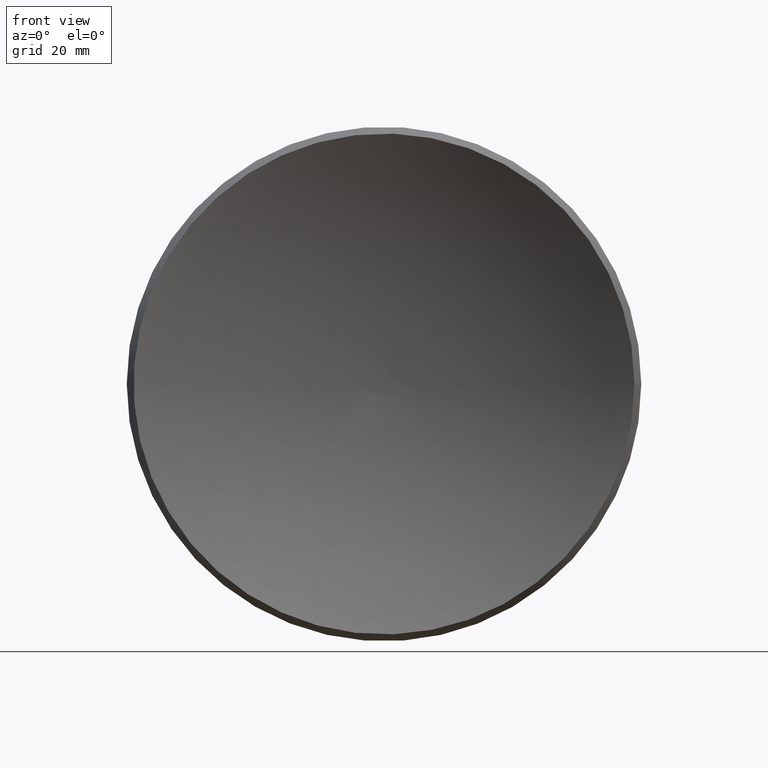
[diagram: clean part render]
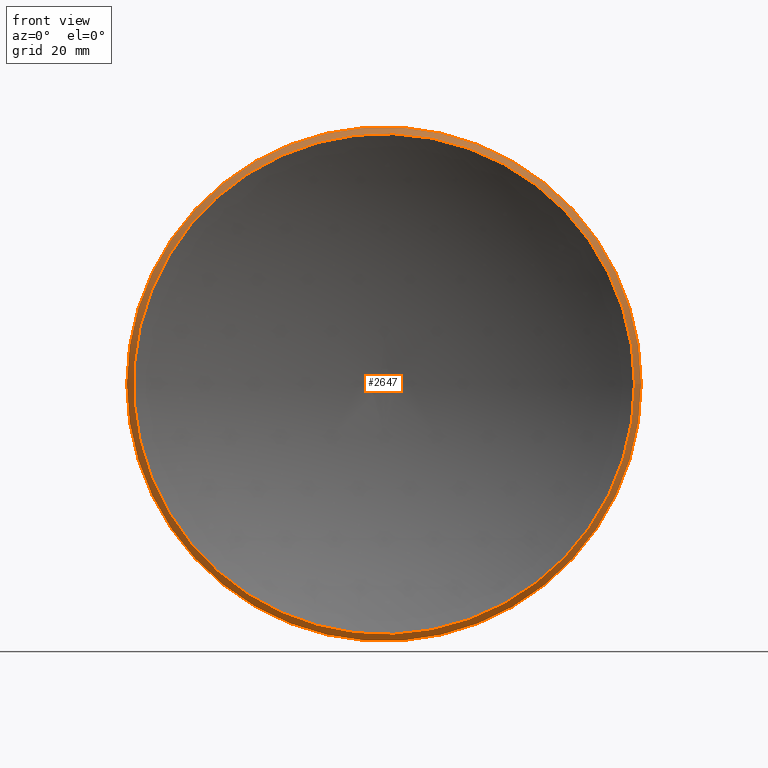
[diagram: same view with one face highlighted and labeled with its STEP entity id]
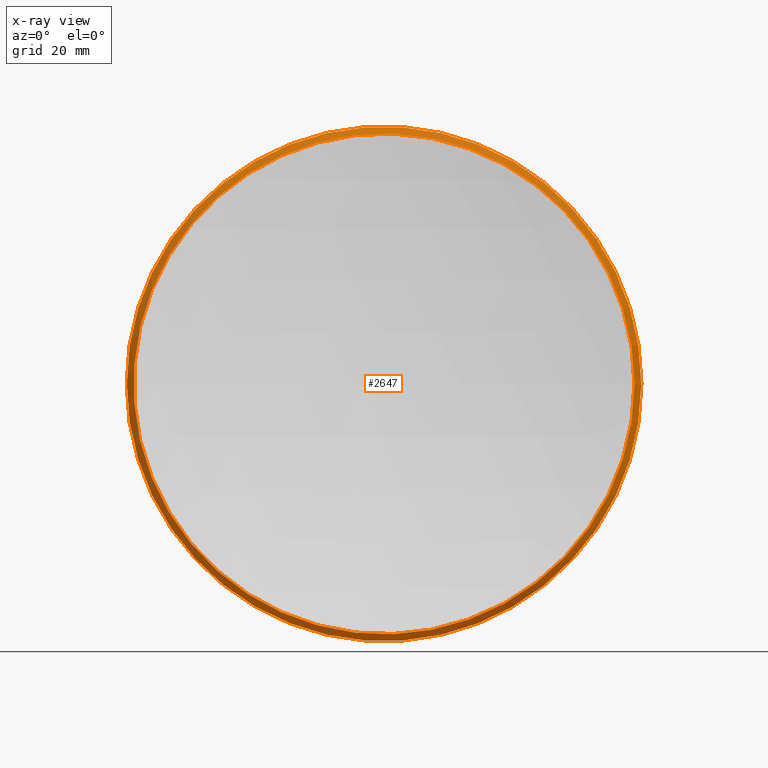
[diagram: x-ray of the same camera — body ghosted, the highlighted face saturated]
A machine part, front view. The second image highlights one B-rep face of the part: STEP entity #2647.
The next image is the same camera in x-ray: the body ghosted, the highlighted face saturated — about 0% of this face is hidden behind the body in this view.
In plain terms, the highlighted conical surface has half-angle 31.736 deg.
Its self-contained STEP definition (entity closure, byte-faithful):
#73 = EDGE_CURVE ( 'NONE', #8307, #8307, #8139, .T. ) ;
#254 = EDGE_LOOP ( 'NONE', ( #9528 ) ) ;
#331 = DIRECTION ( 'NONE',  ( -1.000000000000000000, -2.252424067786322669E-15, 0.000000000000000000 ) ) ;
#865 = CIRCLE ( 'NONE', #5488, 77.39598359967440899 ) ;
#2149 = CARTESIAN_POINT ( 'NONE',  ( 5.856302576246907443E-14, -9.020562075079396891E-14, 0.000000000000000000 ) ) ;
#2222 = EDGE_LOOP ( 'NONE', ( #3497 ) ) ;
#2647 = ADVANCED_FACE ( 'NONE', ( #9130, #5492 ), #5785, .T. ) ;
#2652 = VERTEX_POINT ( 'NONE', #4879 ) ;
#3398 = DIRECTION ( 'NONE',  ( 2.252424067786322669E-15, -1.000000000000000000, -0.000000000000000000 ) ) ;
#3497 = ORIENTED_EDGE ( 'NONE', *, *, #5591, .F. ) ;
#4354 = DIRECTION ( 'NONE',  ( 1.000000000000000000, 2.252424067786322669E-15, 0.000000000000000000 ) ) ;
#4587 = AXIS2_PLACEMENT_3D ( 'NONE', #9772, #11724, #10699 ) ;
#4879 = CARTESIAN_POINT ( 'NONE',  ( 77.39598359967446584, 8.412295545910817715E-14, 0.000000000000000000 ) ) ;
#4991 = DIRECTION ( 'NONE',  ( -2.252424067786322669E-15, 1.000000000000000000, 0.000000000000000000 ) ) ;
#5488 = AXIS2_PLACEMENT_3D ( 'NONE', #8977, #3398, #4354 ) ;
#5492 = FACE_BOUND ( 'NONE', #2222, .T. ) ;
#5591 = EDGE_CURVE ( 'NONE', #2652, #2652, #865, .T. ) ;
#5785 = CONICAL_SURFACE ( 'NONE', #11115, 77.39598359967442320, 0.5538953073302759211 ) ;
#8139 = CIRCLE ( 'NONE', #4587, 79.49999999999992895 ) ;
#8307 = VERTEX_POINT ( 'NONE', #11364 ) ;
#8977 = CARTESIAN_POINT ( 'NONE',  ( 5.856302576246907443E-14, -9.020562075079396891E-14, 0.000000000000000000 ) ) ;
#9130 = FACE_OUTER_BOUND ( 'NONE', #254, .T. ) ;
#9528 = ORIENTED_EDGE ( 'NONE', *, *, #73, .T. ) ;
#9772 = CARTESIAN_POINT ( 'NONE',  ( 5.090044097038611020E-14, 3.401928127865161411, 0.000000000000000000 ) ) ;
#10699 = DIRECTION ( 'NONE',  ( 1.000000000000000000, 2.252958476661704444E-15, 0.000000000000000000 ) ) ;
#11115 = AXIS2_PLACEMENT_3D ( 'NONE', #2149, #4991, #331 ) ;
#11364 = CARTESIAN_POINT ( 'NONE',  ( 79.49999999999998579, 3.401928127865340379, 0.000000000000000000 ) ) ;
#11724 = DIRECTION ( 'NONE',  ( 2.252424067786322669E-15, -1.000000000000000000, -0.000000000000000000 ) ) ;